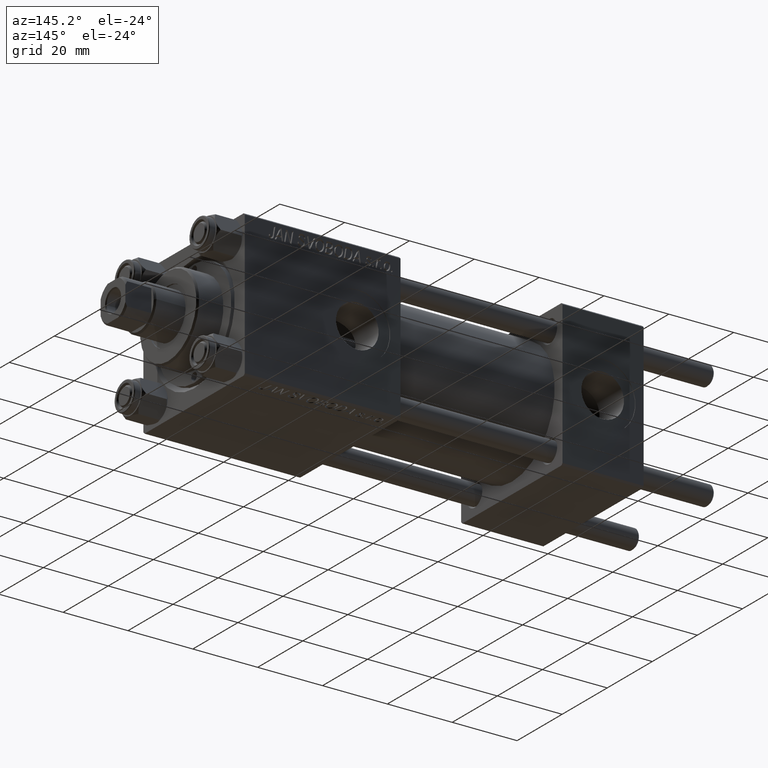
[diagram: clean part render]
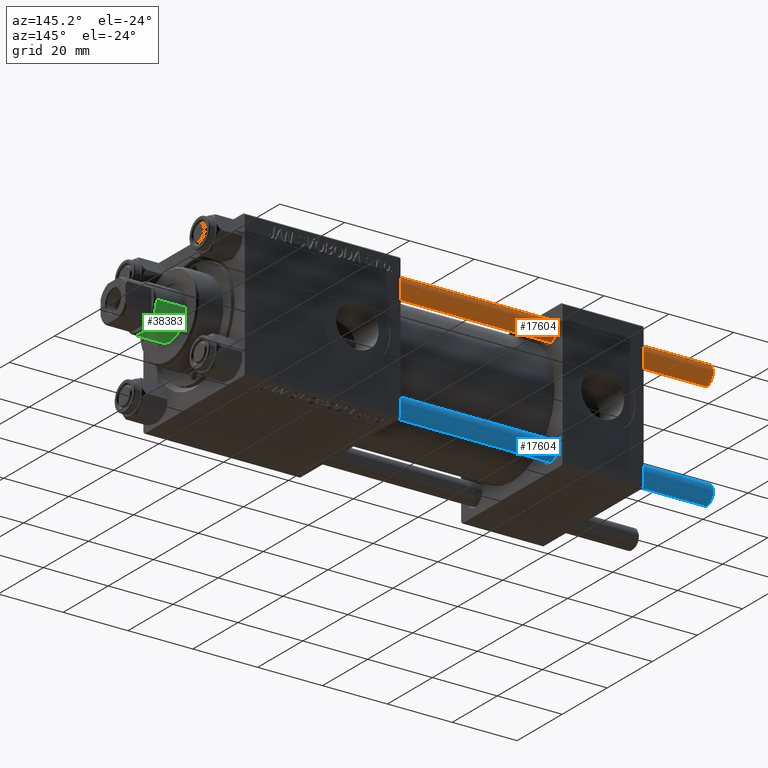
[diagram: same view with three faces highlighted in distinct colors, each labeled with its STEP entity id]
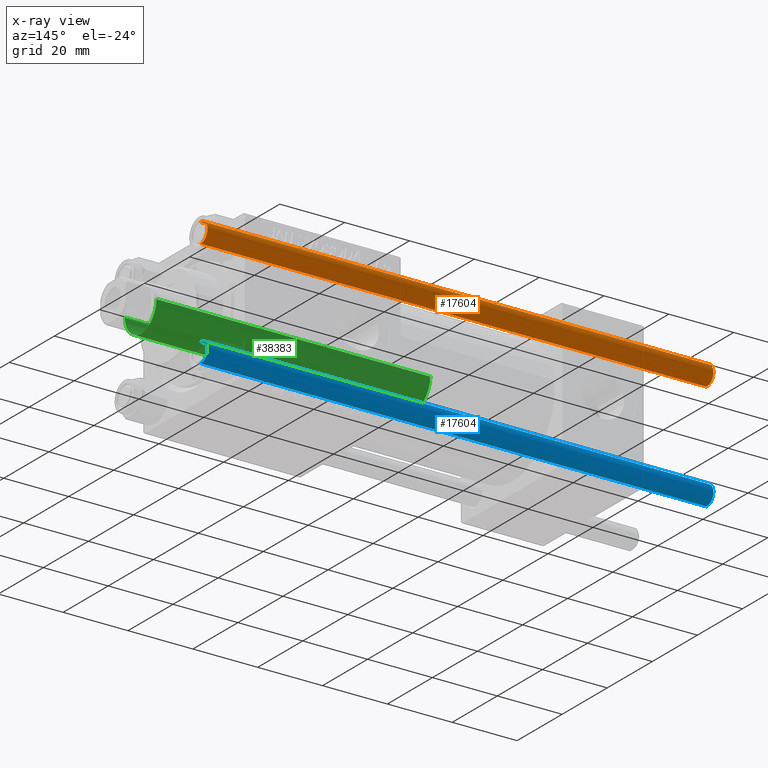
[diagram: x-ray of the same camera — body ghosted, the three highlighted faces saturated]
A machine part, auxiliary view with three faces highlighted in distinct colors.
The next image is the same camera in x-ray (body ghosted, the three faces saturated) — at least one of them is partly hidden behind the body in this view.
Their STEP definitions:

[orange] entity #17604 — the highlighted cylindrical surface (edge-blend (fillet) strip) has radius 3 mm, axis along (-1, -0, -0).
#725 = DIRECTION ( 'NONE',  ( 0.000000000000000000, 0.000000000000000000, -1.000000000000000000 ) ) ;
#785 = CARTESIAN_POINT ( 'NONE',  ( -3.000000000000000444, 0.000000000000000000, 0.4999999999999726885 ) ) ;
#2728 = ORIENTED_EDGE ( 'NONE', *, *, #24500, .T. ) ;
#3947 = CYLINDRICAL_SURFACE ( 'NONE', #11157, 3.000000000000000444 ) ;
#6789 = ORIENTED_EDGE ( 'NONE', *, *, #48963, .T. ) ;
#7028 = DIRECTION ( 'NONE',  ( 1.000000000000000000, 0.000000000000000000, 0.000000000000000000 ) ) ;
#7593 = CARTESIAN_POINT ( 'NONE',  ( -3.000000000000000444, 0.000000000000000000, 157.0000000000000000 ) ) ;
#8121 = DIRECTION ( 'NONE',  ( -0.000000000000000000, -0.000000000000000000, -1.000000000000000000 ) ) ;
#8738 = ORIENTED_EDGE ( 'NONE', *, *, #13594, .T. ) ;
#10951 = CARTESIAN_POINT ( 'NONE',  ( 0.000000000000000000, 0.000000000000000000, 0.4999999999999726885 ) ) ;
#11157 = AXIS2_PLACEMENT_3D ( 'NONE', #23803, #8121, #27207 ) ;
#13285 = AXIS2_PLACEMENT_3D ( 'NONE', #10951, #23488, #7028 ) ;
#13594 = EDGE_CURVE ( 'NONE', #45201, #16991, #37774, .T. ) ;
#16411 = CARTESIAN_POINT ( 'NONE',  ( 3.000000000000000444, 3.673940397442060361E-16, 156.5000000000000284 ) ) ;
#16437 = LINE ( 'NONE', #20623, #43838 ) ;
#16877 = AXIS2_PLACEMENT_3D ( 'NONE', #20599, #725, #45145 ) ;
#16991 = VERTEX_POINT ( 'NONE', #16411 ) ;
#17144 = CARTESIAN_POINT ( 'NONE',  ( 3.000000000000000444, 3.673940397442060361E-16, 0.4999999999999726885 ) ) ;
#17604 = ADVANCED_FACE ( 'NONE', ( #35568 ), #3947, .T. ) ;
#19612 = DIRECTION ( 'NONE',  ( -0.000000000000000000, -0.000000000000000000, -1.000000000000000000 ) ) ;
#20599 = CARTESIAN_POINT ( 'NONE',  ( 0.000000000000000000, 0.000000000000000000, 156.5000000000000284 ) ) ;
#20623 = CARTESIAN_POINT ( 'NONE',  ( 3.000000000000000444, 3.673940397442060361E-16, 157.0000000000000000 ) ) ;
#23488 = DIRECTION ( 'NONE',  ( -0.000000000000000000, -0.000000000000000000, 1.000000000000000000 ) ) ;
#23606 = CARTESIAN_POINT ( 'NONE',  ( -3.000000000000000444, 0.000000000000000000, 156.5000000000000284 ) ) ;
#23803 = CARTESIAN_POINT ( 'NONE',  ( 0.000000000000000000, 0.000000000000000000, 157.0000000000000000 ) ) ;
#24500 = EDGE_CURVE ( 'NONE', #16991, #51029, #16437, .T. ) ;
#27207 = DIRECTION ( 'NONE',  ( -1.000000000000000000, 0.000000000000000000, 0.000000000000000000 ) ) ;
#32391 = DIRECTION ( 'NONE',  ( -0.000000000000000000, -0.000000000000000000, -1.000000000000000000 ) ) ;
#35568 = FACE_OUTER_BOUND ( 'NONE', #43967, .T. ) ;
#37409 = EDGE_CURVE ( 'NONE', #45201, #48135, #43398, .T. ) ;
#37774 = CIRCLE ( 'NONE', #16877, 3.000000000000000444 ) ;
#42086 = ORIENTED_EDGE ( 'NONE', *, *, #37409, .F. ) ;
#43398 = LINE ( 'NONE', #7593, #48065 ) ;
#43838 = VECTOR ( 'NONE', #32391, 1000.000000000000000 ) ;
#43967 = EDGE_LOOP ( 'NONE', ( #8738, #2728, #6789, #42086 ) ) ;
#45024 = CIRCLE ( 'NONE', #13285, 3.000000000000000444 ) ;
#45145 = DIRECTION ( 'NONE',  ( 1.000000000000000000, 0.000000000000000000, 0.000000000000000000 ) ) ;
#45201 = VERTEX_POINT ( 'NONE', #23606 ) ;
#48065 = VECTOR ( 'NONE', #19612, 1000.000000000000000 ) ;
#48135 = VERTEX_POINT ( 'NONE', #785 ) ;
#48963 = EDGE_CURVE ( 'NONE', #51029, #48135, #45024, .T. ) ;
#51029 = VERTEX_POINT ( 'NONE', #17144 ) ;

[blue] entity #17604 — the highlighted cylindrical surface (edge-blend (fillet) strip) has radius 3 mm, axis along (1, 0, -0).
#725 = DIRECTION ( 'NONE',  ( 0.000000000000000000, 0.000000000000000000, -1.000000000000000000 ) ) ;
#785 = CARTESIAN_POINT ( 'NONE',  ( -3.000000000000000444, 0.000000000000000000, 0.4999999999999726885 ) ) ;
#2728 = ORIENTED_EDGE ( 'NONE', *, *, #24500, .T. ) ;
#3947 = CYLINDRICAL_SURFACE ( 'NONE', #11157, 3.000000000000000444 ) ;
#6789 = ORIENTED_EDGE ( 'NONE', *, *, #48963, .T. ) ;
#7028 = DIRECTION ( 'NONE',  ( 1.000000000000000000, 0.000000000000000000, 0.000000000000000000 ) ) ;
#7593 = CARTESIAN_POINT ( 'NONE',  ( -3.000000000000000444, 0.000000000000000000, 157.0000000000000000 ) ) ;
#8121 = DIRECTION ( 'NONE',  ( -0.000000000000000000, -0.000000000000000000, -1.000000000000000000 ) ) ;
#8738 = ORIENTED_EDGE ( 'NONE', *, *, #13594, .T. ) ;
#10951 = CARTESIAN_POINT ( 'NONE',  ( 0.000000000000000000, 0.000000000000000000, 0.4999999999999726885 ) ) ;
#11157 = AXIS2_PLACEMENT_3D ( 'NONE', #23803, #8121, #27207 ) ;
#13285 = AXIS2_PLACEMENT_3D ( 'NONE', #10951, #23488, #7028 ) ;
#13594 = EDGE_CURVE ( 'NONE', #45201, #16991, #37774, .T. ) ;
#16411 = CARTESIAN_POINT ( 'NONE',  ( 3.000000000000000444, 3.673940397442060361E-16, 156.5000000000000284 ) ) ;
#16437 = LINE ( 'NONE', #20623, #43838 ) ;
#16877 = AXIS2_PLACEMENT_3D ( 'NONE', #20599, #725, #45145 ) ;
#16991 = VERTEX_POINT ( 'NONE', #16411 ) ;
#17144 = CARTESIAN_POINT ( 'NONE',  ( 3.000000000000000444, 3.673940397442060361E-16, 0.4999999999999726885 ) ) ;
#17604 = ADVANCED_FACE ( 'NONE', ( #35568 ), #3947, .T. ) ;
#19612 = DIRECTION ( 'NONE',  ( -0.000000000000000000, -0.000000000000000000, -1.000000000000000000 ) ) ;
#20599 = CARTESIAN_POINT ( 'NONE',  ( 0.000000000000000000, 0.000000000000000000, 156.5000000000000284 ) ) ;
#20623 = CARTESIAN_POINT ( 'NONE',  ( 3.000000000000000444, 3.673940397442060361E-16, 157.0000000000000000 ) ) ;
#23488 = DIRECTION ( 'NONE',  ( -0.000000000000000000, -0.000000000000000000, 1.000000000000000000 ) ) ;
#23606 = CARTESIAN_POINT ( 'NONE',  ( -3.000000000000000444, 0.000000000000000000, 156.5000000000000284 ) ) ;
#23803 = CARTESIAN_POINT ( 'NONE',  ( 0.000000000000000000, 0.000000000000000000, 157.0000000000000000 ) ) ;
#24500 = EDGE_CURVE ( 'NONE', #16991, #51029, #16437, .T. ) ;
#27207 = DIRECTION ( 'NONE',  ( -1.000000000000000000, 0.000000000000000000, 0.000000000000000000 ) ) ;
#32391 = DIRECTION ( 'NONE',  ( -0.000000000000000000, -0.000000000000000000, -1.000000000000000000 ) ) ;
#35568 = FACE_OUTER_BOUND ( 'NONE', #43967, .T. ) ;
#37409 = EDGE_CURVE ( 'NONE', #45201, #48135, #43398, .T. ) ;
#37774 = CIRCLE ( 'NONE', #16877, 3.000000000000000444 ) ;
#42086 = ORIENTED_EDGE ( 'NONE', *, *, #37409, .F. ) ;
#43398 = LINE ( 'NONE', #7593, #48065 ) ;
#43838 = VECTOR ( 'NONE', #32391, 1000.000000000000000 ) ;
#43967 = EDGE_LOOP ( 'NONE', ( #8738, #2728, #6789, #42086 ) ) ;
#45024 = CIRCLE ( 'NONE', #13285, 3.000000000000000444 ) ;
#45145 = DIRECTION ( 'NONE',  ( 1.000000000000000000, 0.000000000000000000, 0.000000000000000000 ) ) ;
#45201 = VERTEX_POINT ( 'NONE', #23606 ) ;
#48065 = VECTOR ( 'NONE', #19612, 1000.000000000000000 ) ;
#48135 = VERTEX_POINT ( 'NONE', #785 ) ;
#48963 = EDGE_CURVE ( 'NONE', #51029, #48135, #45024, .T. ) ;
#51029 = VERTEX_POINT ( 'NONE', #17144 ) ;

[green] entity #38383 — the highlighted cylindrical surface (edge-blend (fillet) strip) has radius 7 mm, axis along (-1, 0, 0).
#414 = ORIENTED_EDGE ( 'NONE', *, *, #34469, .T. ) ;
#422 = VECTOR ( 'NONE', #10166, 1000.000000000000000 ) ;
#1510 = CARTESIAN_POINT ( 'NONE',  ( 7.000000000000000000, 8.572527594031473190E-16, 30.00000000000000000 ) ) ;
#2956 = DIRECTION ( 'NONE',  ( 0.000000000000000000, 0.000000000000000000, 1.000000000000000000 ) ) ;
#2966 = DIRECTION ( 'NONE',  ( -1.000000000000000000, 0.000000000000000000, 0.000000000000000000 ) ) ;
#5063 = ORIENTED_EDGE ( 'NONE', *, *, #22612, .T. ) ;
#6241 = CIRCLE ( 'NONE', #22097, 7.000000000000000000 ) ;
#7148 = FACE_OUTER_BOUND ( 'NONE', #15291, .T. ) ;
#7776 = CARTESIAN_POINT ( 'NONE',  ( 7.000000000000000000, 8.572527594031473190E-16, 114.4999999999999858 ) ) ;
#10021 = DIRECTION ( 'NONE',  ( -0.000000000000000000, -0.000000000000000000, -1.000000000000000000 ) ) ;
#10166 = DIRECTION ( 'NONE',  ( -0.000000000000000000, -0.000000000000000000, -1.000000000000000000 ) ) ;
#10287 = DIRECTION ( 'NONE',  ( 1.000000000000000000, 0.000000000000000000, 0.000000000000000000 ) ) ;
#11758 = ORIENTED_EDGE ( 'NONE', *, *, #37542, .T. ) ;
#13184 = CARTESIAN_POINT ( 'NONE',  ( -7.000000000000000000, 0.000000000000000000, 115.0000000000000000 ) ) ;
#13945 = VECTOR ( 'NONE', #10021, 1000.000000000000000 ) ;
#15291 = EDGE_LOOP ( 'NONE', ( #414, #11758, #5063, #25239 ) ) ;
#15301 = VERTEX_POINT ( 'NONE', #7776 ) ;
#15514 = AXIS2_PLACEMENT_3D ( 'NONE', #50774, #2956, #10287 ) ;
#17194 = DIRECTION ( 'NONE',  ( 0.000000000000000000, 0.000000000000000000, -1.000000000000000000 ) ) ;
#17237 = CARTESIAN_POINT ( 'NONE',  ( 7.000000000000000000, 8.572527594031473190E-16, 115.0000000000000000 ) ) ;
#18885 = AXIS2_PLACEMENT_3D ( 'NONE', #19428, #22829, #2966 ) ;
#19428 = CARTESIAN_POINT ( 'NONE',  ( 0.000000000000000000, 0.000000000000000000, 115.0000000000000000 ) ) ;
#22097 = AXIS2_PLACEMENT_3D ( 'NONE', #25037, #17194, #24785 ) ;
#22612 = EDGE_CURVE ( 'NONE', #49286, #44085, #47227, .T. ) ;
#22627 = VERTEX_POINT ( 'NONE', #45824 ) ;
#22829 = DIRECTION ( 'NONE',  ( -0.000000000000000000, -0.000000000000000000, -1.000000000000000000 ) ) ;
#24785 = DIRECTION ( 'NONE',  ( 1.000000000000000000, 0.000000000000000000, 0.000000000000000000 ) ) ;
#25037 = CARTESIAN_POINT ( 'NONE',  ( 0.000000000000000000, 0.000000000000000000, 114.4999999999999858 ) ) ;
#25239 = ORIENTED_EDGE ( 'NONE', *, *, #28871, .F. ) ;
#28871 = EDGE_CURVE ( 'NONE', #22627, #44085, #33566, .T. ) ;
#31449 = CYLINDRICAL_SURFACE ( 'NONE', #18885, 7.000000000000000000 ) ;
#33566 = LINE ( 'NONE', #13184, #13945 ) ;
#34469 = EDGE_CURVE ( 'NONE', #22627, #15301, #6241, .T. ) ;
#37542 = EDGE_CURVE ( 'NONE', #15301, #49286, #48855, .T. ) ;
#38383 = ADVANCED_FACE ( 'NONE', ( #7148 ), #31449, .T. ) ;
#39269 = CARTESIAN_POINT ( 'NONE',  ( -7.000000000000000000, 0.000000000000000000, 30.00000000000000000 ) ) ;
#44085 = VERTEX_POINT ( 'NONE', #39269 ) ;
#45824 = CARTESIAN_POINT ( 'NONE',  ( -7.000000000000000000, 0.000000000000000000, 114.4999999999999858 ) ) ;
#47227 = CIRCLE ( 'NONE', #15514, 7.000000000000000000 ) ;
#48855 = LINE ( 'NONE', #17237, #422 ) ;
#49286 = VERTEX_POINT ( 'NONE', #1510 ) ;
#50774 = CARTESIAN_POINT ( 'NONE',  ( 0.000000000000000000, 0.000000000000000000, 30.00000000000000000 ) ) ;